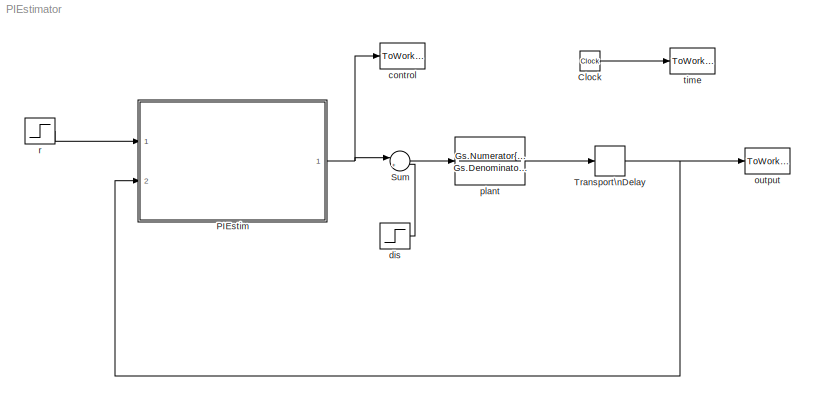
MODEL PIEstimator
KIND model
BLOCK [Clock] Clock
  SID = 34
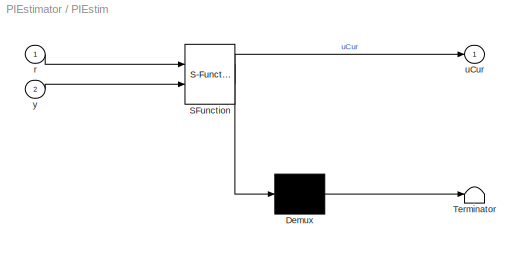
BLOCK [SubSystem] PIEstim
  ErrorFcn = Stateflow.Translate.translate
  PermitHierarchicalResolution = ExplicitOnly
  Ports = [2, 1]
  RequestExecContextInheritance = off
  SFBlockType = MATLAB Function
  SID = 43
  TreatAsAtomicUnit = on
BLOCK [Demux] PIEstim/ Demux 
  Outputs = 1
  Ports = [1, 1]
  SID = 43::25
BLOCK [S-Function] PIEstim/ SFunction 
  EnableBusSupport = on
  FunctionName = sf_sfun
  Parameters = K1,K2,a,alpha2,deltat,umax,umin
  PortCounts = [2 2]
  Ports = [2, 2]
  SFcnIsStateOwnerBlock = off
  SFunctionDeploymentMode = off
  SID = 43::24
  Tag = Stateflow S-Function 2
BLOCK [Terminator] PIEstim/ Terminator 
  SID = 43::26
BLOCK [Inport] PIEstim/r
  IconDisplay = Port number
  SID = 43::19
BLOCK [Outport] PIEstim/uCur
  IconDisplay = Port number
  SID = 43::5
BLOCK [Inport] PIEstim/y
  IconDisplay = Port number
  Port = 2
  SID = 43::20
BLOCK [Sum] Sum
  IconShape = round
  InputSameDT = off
  Inputs = |++
  OutDataTypeStr = Inherit: Inherit via internal rule
  Ports = [2, 1]
  SID = 44
  SaturateOnIntegerOverflow = off
BLOCK [TransportDelay] Transport\nDelay
  DelayTime = delay
  Ports = [1, 1]
  SID = 39
BLOCK [ToWorkspace] control
  MaxDataPoints = 100000
  Ports = [1]
  SID = 36
  VariableName = u
BLOCK [Step] dis
  After = dAmp
  SID = 45
  SampleTime = 0
  Time = Tsim/2
BLOCK [ToWorkspace] output
  MaxDataPoints = 100000
  Ports = [1]
  SID = 28
  VariableName = y
BLOCK [TransferFcn] plant
  Denominator = Gs.Denominator{1,1}
  Numerator = Gs.Numerator{1,1}
  SID = 1
BLOCK [Step] r
  SID = 31
  SampleTime = 0
  Time = 0
BLOCK [ToWorkspace] time
  MaxDataPoints = 100000
  Ports = [1]
  SID = 33
  VariableName = t
LINE Clock:1 -> time:1
LINE PIEstim/ Demux :1 -> PIEstim/ Terminator :1
LINE PIEstim/ SFunction :1 -> PIEstim/ Demux :1
LINE PIEstim/ SFunction :2 -> PIEstim/uCur:1
LINE PIEstim/r:1 -> PIEstim/ SFunction :1
LINE PIEstim/y:1 -> PIEstim/ SFunction :2
NET PIEstim:1 -> Sum:1, control:1
LINE Sum:1 -> plant:1
NET Transport\nDelay:1 -> PIEstim:2, output:1
LINE dis:1 -> Sum:2
LINE plant:1 -> Transport\nDelay:1
LINE r:1 -> PIEstim:1
note: NET lines group one-source signal fan-out (src -> all destinations, sorted); 1:1 wires keep LINE
CHART PIEstim states=1 transitions=1
  STATE_LABEL 'eML_blk_kernel()'
